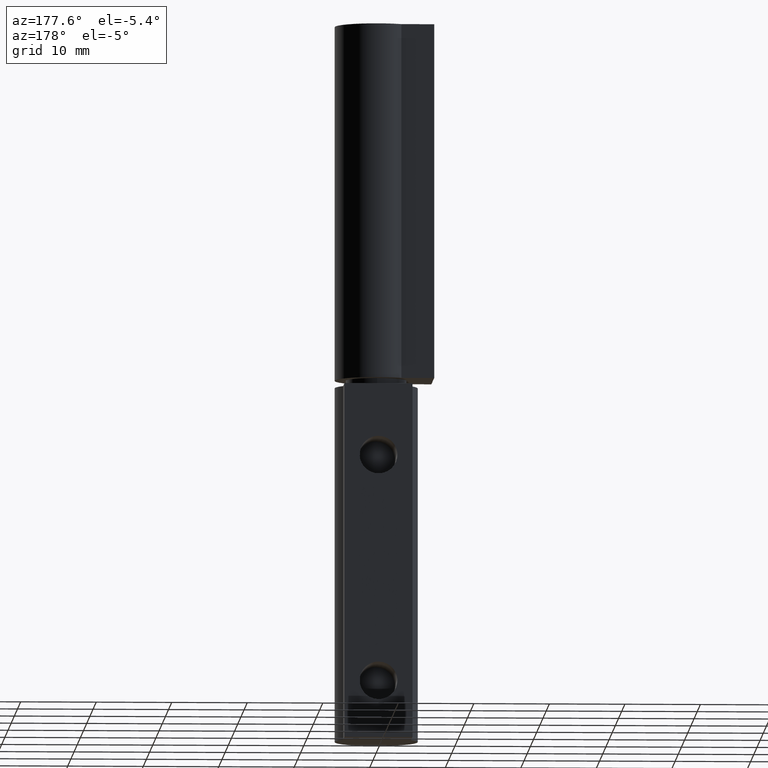
[diagram: clean part render]
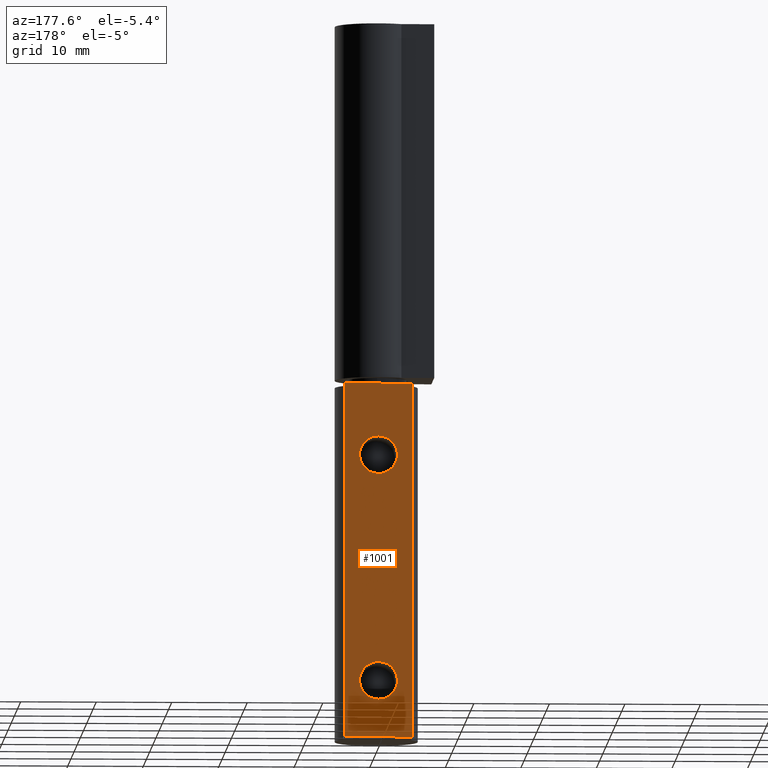
[diagram: same view with one face highlighted and labeled with its STEP entity id]
A machine part, auxiliary view. The second image highlights one B-rep face of the part: STEP entity #1001.
In plain terms, the highlighted face is a freeform B-spline surface patch.
Its self-contained STEP definition (entity closure, byte-faithful):
#79=CARTESIAN_POINT('',(-2.492293334300697,7.500000356230890,37.696149615875882));
#80=VERTEX_POINT('',#79);
#86=CARTESIAN_POINT('',(0.0,7.500000356230890,40.000001876148097));
#87=VERTEX_POINT('',#86);
#88=CARTESIAN_POINT('',(0.0,7.500000356230890,40.000001876148097));
#89=CARTESIAN_POINT('',(-2.310976228386242,7.500000356230890,40.000001876148112));
#90=CARTESIAN_POINT('',(-2.492293334300697,7.500000356230890,37.696149615875882));
#98=(BOUNDED_CURVE()B_SPLINE_CURVE(2,(#88,#89,#90),.UNSPECIFIED.,.F.,.U.)B_SPLINE_CURVE_WITH_KNOTS((3,3),(0.0,0.236331300576619),.UNSPECIFIED.)CURVE()GEOMETRIC_REPRESENTATION_ITEM()RATIONAL_B_SPLINE_CURVE((1.0,0.723120658670979,0.969723356054638))REPRESENTATION_ITEM(''));
#99=EDGE_CURVE('',#87,#80,#98,.T.);
#101=CARTESIAN_POINT('',(2.492293334300697,7.500000356230890,37.303854136420327));
#102=VERTEX_POINT('',#101);
#103=CARTESIAN_POINT('',(2.492293334300697,7.500000356230890,37.303854136420334));
#104=CARTESIAN_POINT('',(2.500000000000000,7.500000356230890,37.401776608218874));
#105=CARTESIAN_POINT('',(2.500000000000000,7.500000356230890,37.500001876148097));
#106=CARTESIAN_POINT('',(2.500000000000000,7.500000356230891,40.000001876148104));
#107=CARTESIAN_POINT('',(0.0,7.500000356230890,40.000001876148097));
#115=(BOUNDED_CURVE()B_SPLINE_CURVE(2,(#103,#104,#105,#106,#107),.UNSPECIFIED.,.F.,.U.)B_SPLINE_CURVE_WITH_KNOTS((3,2,3),(0.736331300576619,0.750000000000000,1.0),.UNSPECIFIED.)CURVE()GEOMETRIC_REPRESENTATION_ITEM()RATIONAL_B_SPLINE_CURVE((0.969723356054639,0.983986122515570,1.0,0.707106781186548,1.0))REPRESENTATION_ITEM(''));
#116=EDGE_CURVE('',#102,#87,#115,.T.);
#192=CARTESIAN_POINT('',(0.0,7.500000356230890,35.000001876148097));
#193=VERTEX_POINT('',#192);
#194=CARTESIAN_POINT('',(0.0,7.500000356230890,35.000001876148097));
#195=CARTESIAN_POINT('',(2.310976228386259,7.500000356230892,35.000001876148104));
#196=CARTESIAN_POINT('',(2.492293334300697,7.500000356230891,37.303854136420327));
#204=(BOUNDED_CURVE()B_SPLINE_CURVE(2,(#194,#195,#196),.UNSPECIFIED.,.F.,.U.)B_SPLINE_CURVE_WITH_KNOTS((3,3),(0.500000000000000,0.736331300576620),.UNSPECIFIED.)CURVE()GEOMETRIC_REPRESENTATION_ITEM()RATIONAL_B_SPLINE_CURVE((1.0,0.723120658670977,0.969723356054641))REPRESENTATION_ITEM(''));
#205=EDGE_CURVE('',#193,#102,#204,.T.);
#207=CARTESIAN_POINT('',(-2.492293334300697,7.500000356230890,37.696149615875882));
#208=CARTESIAN_POINT('',(-2.500000000000000,7.500000356230891,37.598227144077349));
#209=CARTESIAN_POINT('',(-2.500000000000000,7.500000356230890,37.500001876148097));
#210=CARTESIAN_POINT('',(-2.500000000000000,7.500000356230891,35.000001876148104));
#211=CARTESIAN_POINT('',(0.0,7.500000356230890,35.000001876148097));
#219=(BOUNDED_CURVE()B_SPLINE_CURVE(2,(#207,#208,#209,#210,#211),.UNSPECIFIED.,.F.,.U.)B_SPLINE_CURVE_WITH_KNOTS((3,2,3),(0.236331300576619,0.250000000000000,0.500000000000000),.UNSPECIFIED.)CURVE()GEOMETRIC_REPRESENTATION_ITEM()RATIONAL_B_SPLINE_CURVE((0.969723356054638,0.983986122515569,1.0,0.707106781186548,1.0))REPRESENTATION_ITEM(''));
#220=EDGE_CURVE('',#80,#193,#219,.T.);
#261=CARTESIAN_POINT('',(-2.492293334300697,7.500000356230890,7.696149615875864));
#262=VERTEX_POINT('',#261);
#268=CARTESIAN_POINT('',(0.0,7.500000356230890,10.000001876148090));
#269=VERTEX_POINT('',#268);
#270=CARTESIAN_POINT('',(0.0,7.500000356230890,10.000001876148090));
#271=CARTESIAN_POINT('',(-2.310976228386244,7.500000356230890,10.000001876148090));
#272=CARTESIAN_POINT('',(-2.492293334300697,7.500000356230890,7.696149615875864));
#280=(BOUNDED_CURVE()B_SPLINE_CURVE(2,(#270,#271,#272),.UNSPECIFIED.,.F.,.U.)B_SPLINE_CURVE_WITH_KNOTS((3,3),(0.0,0.236331300576619),.UNSPECIFIED.)CURVE()GEOMETRIC_REPRESENTATION_ITEM()RATIONAL_B_SPLINE_CURVE((1.0,0.723120658670978,0.969723356054639))REPRESENTATION_ITEM(''));
#281=EDGE_CURVE('',#269,#262,#280,.T.);
#283=CARTESIAN_POINT('',(2.492293334300697,7.500000356230890,7.303854136420314));
#284=VERTEX_POINT('',#283);
#285=CARTESIAN_POINT('',(2.492293334300697,7.500000356230890,7.303854136420315));
#286=CARTESIAN_POINT('',(2.500000000000000,7.500000356230890,7.401776608218860));
#287=CARTESIAN_POINT('',(2.500000000000000,7.500000356230890,7.500001876148090));
#288=CARTESIAN_POINT('',(2.500000000000000,7.500000356230891,10.000001876148090));
#289=CARTESIAN_POINT('',(0.0,7.500000356230890,10.000001876148090));
#297=(BOUNDED_CURVE()B_SPLINE_CURVE(2,(#285,#286,#287,#288,#289),.UNSPECIFIED.,.F.,.U.)B_SPLINE_CURVE_WITH_KNOTS((3,2,3),(0.736331300576619,0.750000000000000,1.0),.UNSPECIFIED.)CURVE()GEOMETRIC_REPRESENTATION_ITEM()RATIONAL_B_SPLINE_CURVE((0.969723356054638,0.983986122515569,1.0,0.707106781186548,1.0))REPRESENTATION_ITEM(''));
#298=EDGE_CURVE('',#284,#269,#297,.T.);
#374=CARTESIAN_POINT('',(0.0,7.500000356230890,5.000001876148090));
#375=VERTEX_POINT('',#374);
#376=CARTESIAN_POINT('',(0.0,7.500000356230890,5.000001876148090));
#377=CARTESIAN_POINT('',(2.310976228386228,7.500000356230890,5.000001876148089));
#378=CARTESIAN_POINT('',(2.492293334300697,7.500000356230890,7.303854136420314));
#386=(BOUNDED_CURVE()B_SPLINE_CURVE(2,(#376,#377,#378),.UNSPECIFIED.,.F.,.U.)B_SPLINE_CURVE_WITH_KNOTS((3,3),(0.500000000000000,0.736331300576618),.UNSPECIFIED.)CURVE()GEOMETRIC_REPRESENTATION_ITEM()RATIONAL_B_SPLINE_CURVE((1.0,0.723120658670980,0.969723356054636))REPRESENTATION_ITEM(''));
#387=EDGE_CURVE('',#375,#284,#386,.T.);
#389=CARTESIAN_POINT('',(-2.492293334300696,7.500000356230892,7.696149615875864));
#390=CARTESIAN_POINT('',(-2.500000000000000,7.500000356230890,7.598227144077319));
#391=CARTESIAN_POINT('',(-2.500000000000000,7.500000356230890,7.500001876148090));
#392=CARTESIAN_POINT('',(-2.500000000000000,7.500000356230891,5.000001876148090));
#393=CARTESIAN_POINT('',(0.0,7.500000356230890,5.000001876148090));
#401=(BOUNDED_CURVE()B_SPLINE_CURVE(2,(#389,#390,#391,#392,#393),.UNSPECIFIED.,.F.,.U.)B_SPLINE_CURVE_WITH_KNOTS((3,2,3),(0.236331300576619,0.250000000000000,0.500000000000000),.UNSPECIFIED.)CURVE()GEOMETRIC_REPRESENTATION_ITEM()RATIONAL_B_SPLINE_CURVE((0.969723356054639,0.983986122515569,1.0,0.707106781186548,1.0))REPRESENTATION_ITEM(''));
#402=EDGE_CURVE('',#262,#375,#401,.T.);
#812=CARTESIAN_POINT('',(4.500000213738530,7.500000356230890,0.0));
#813=VERTEX_POINT('',#812);
#840=CARTESIAN_POINT('',(-4.500000213738530,7.500000356230890,0.0));
#841=VERTEX_POINT('',#840);
#847=CARTESIAN_POINT('',(-4.500000213738530,7.500000356230890,0.0));
#848=CARTESIAN_POINT('',(4.500000213738530,7.500000356230890,0.0));
#849=QUASI_UNIFORM_CURVE('',1,(#847,#848),.UNSPECIFIED.,.F.,.U.);
#850=EDGE_CURVE('',#841,#813,#849,.T.);
#868=CARTESIAN_POINT('',(-4.500000213738530,7.500000356230890,47.000002232378897));
#869=VERTEX_POINT('',#868);
#875=CARTESIAN_POINT('',(-4.500000213738530,7.500000356230890,47.000002232378897));
#876=CARTESIAN_POINT('',(-4.500000213738530,7.500000356230890,0.0));
#877=QUASI_UNIFORM_CURVE('',1,(#875,#876),.UNSPECIFIED.,.F.,.U.);
#878=EDGE_CURVE('',#869,#841,#877,.T.);
#940=CARTESIAN_POINT('',(4.500000213738530,7.500000356230890,47.000002232378897));
#941=VERTEX_POINT('',#940);
#942=CARTESIAN_POINT('',(4.500000213738530,7.500000356230890,47.000002232378897));
#943=CARTESIAN_POINT('',(4.500000213738530,7.500000356230890,0.0));
#944=QUASI_UNIFORM_CURVE('',1,(#942,#943),.UNSPECIFIED.,.F.,.U.);
#945=EDGE_CURVE('',#941,#813,#944,.T.);
#962=CARTESIAN_POINT('',(-4.500000213738530,7.500000356230890,47.000002232378897));
#963=CARTESIAN_POINT('',(4.500000213738530,7.500000356230890,47.000002232378897));
#964=QUASI_UNIFORM_CURVE('',1,(#962,#963),.UNSPECIFIED.,.F.,.U.);
#965=EDGE_CURVE('',#869,#941,#964,.T.);
#978=CARTESIAN_POINT('',(-4.949550016521809,7.500000356230890,-2.347650020412202));
#979=CARTESIAN_POINT('',(-4.949550016521809,7.500000356230890,49.347653513429407));
#980=CARTESIAN_POINT('',(4.949549775122986,7.500000356230890,-2.347650020412202));
#981=CARTESIAN_POINT('',(4.949549775122986,7.500000356230890,49.347653513429407));
#982=B_SPLINE_SURFACE_WITH_KNOTS('',1,1,((#978,#980),(#979,#981)),.UNSPECIFIED.,.F.,.F.,.U.,(2,2),(2,2),(0.0,51.695303533841610),(0.0,9.899099791644796),.UNSPECIFIED.);
#983=ORIENTED_EDGE('',*,*,#850,.F.);
#984=ORIENTED_EDGE('',*,*,#878,.F.);
#985=ORIENTED_EDGE('',*,*,#965,.T.);
#986=ORIENTED_EDGE('',*,*,#945,.T.);
#987=EDGE_LOOP('',(#983,#984,#985,#986));
#988=FACE_OUTER_BOUND('',#987,.T.);
#989=ORIENTED_EDGE('',*,*,#387,.T.);
#990=ORIENTED_EDGE('',*,*,#298,.T.);
#991=ORIENTED_EDGE('',*,*,#281,.T.);
#992=ORIENTED_EDGE('',*,*,#402,.T.);
#993=EDGE_LOOP('',(#989,#990,#991,#992));
#994=FACE_BOUND('',#993,.T.);
#995=ORIENTED_EDGE('',*,*,#205,.T.);
#996=ORIENTED_EDGE('',*,*,#116,.T.);
#997=ORIENTED_EDGE('',*,*,#99,.T.);
#998=ORIENTED_EDGE('',*,*,#220,.T.);
#999=EDGE_LOOP('',(#995,#996,#997,#998));
#1000=FACE_BOUND('',#999,.T.);
#1001=ADVANCED_FACE('',(#988,#994,#1000),#982,.T.);